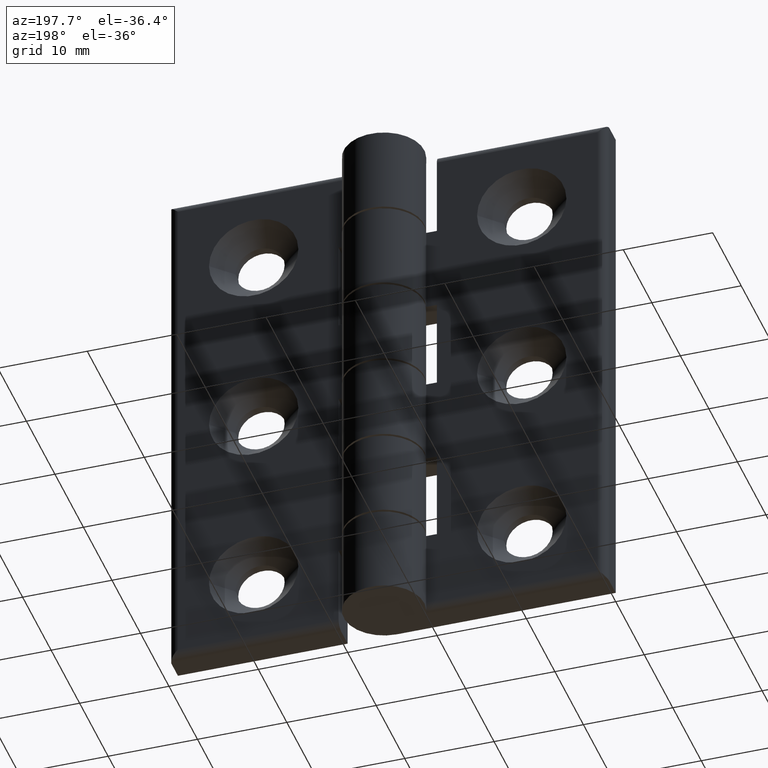
[diagram: clean part render]
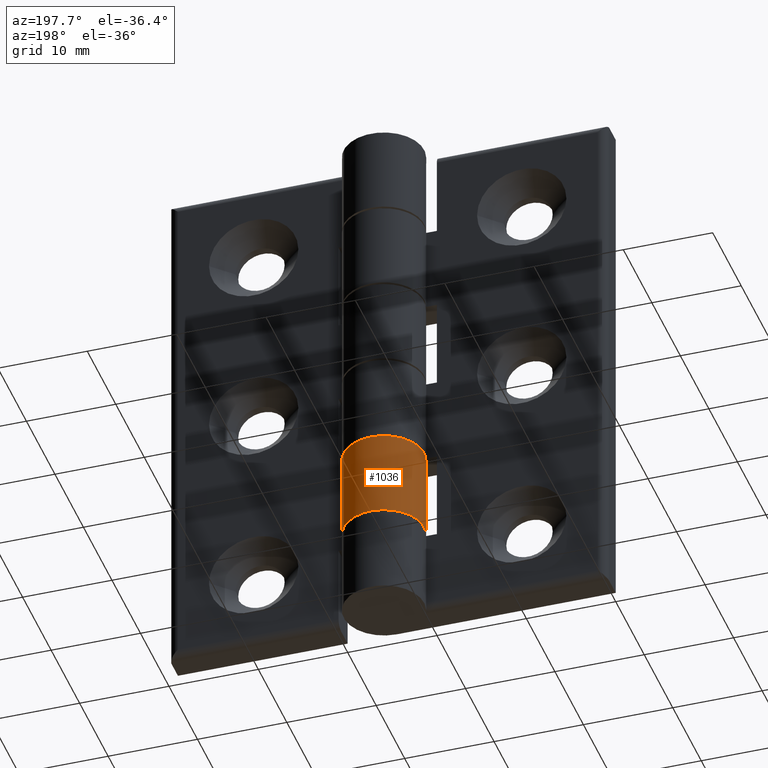
[diagram: same view with one face highlighted and labeled with its STEP entity id]
A machine part, auxiliary view. The second image highlights one B-rep face of the part: STEP entity #1036.
In plain terms, the highlighted cylindrical surface (partial cylindrical patch) has radius 4.5 mm, axis along (0, 0, 1).
Its self-contained STEP definition (entity closure, byte-faithful):
#139=CIRCLE('',#1124,4.5);
#141=CIRCLE('',#1127,4.5);
#202=FACE_OUTER_BOUND('',#291,.T.);
#291=EDGE_LOOP('',(#920,#921,#922,#923));
#397=LINE('',#1741,#475);
#401=LINE('',#1753,#479);
#475=VECTOR('',#1410,9.8);
#479=VECTOR('',#1424,9.8);
#548=VERTEX_POINT('',#1694);
#549=VERTEX_POINT('',#1696);
#552=VERTEX_POINT('',#1703);
#554=VERTEX_POINT('',#1707);
#668=EDGE_CURVE('',#549,#548,#139,.T.);
#674=EDGE_CURVE('',#552,#554,#141,.T.);
#690=EDGE_CURVE('',#554,#549,#397,.T.);
#697=EDGE_CURVE('',#552,#548,#401,.T.);
#920=ORIENTED_EDGE('',*,*,#668,.T.);
#921=ORIENTED_EDGE('',*,*,#697,.F.);
#922=ORIENTED_EDGE('',*,*,#674,.T.);
#923=ORIENTED_EDGE('',*,*,#690,.T.);
#983=CYLINDRICAL_SURFACE('',#1142,4.5);
#1036=ADVANCED_FACE('',(#202),#983,.T.);
#1124=AXIS2_PLACEMENT_3D('',#1697,#1368,#1369);
#1127=AXIS2_PLACEMENT_3D('',#1709,#1378,#1379);
#1142=AXIS2_PLACEMENT_3D('',#1752,#1422,#1423);
#1368=DIRECTION('center_axis',(2.22044604925031E-16,0.,-1.));
#1369=DIRECTION('ref_axis',(0.957362632379467,-0.288888888888889,0.));
#1378=DIRECTION('center_axis',(4.44089209850063E-16,0.,1.));
#1379=DIRECTION('ref_axis',(0.957362632379467,-0.288888888888889,0.));
#1410=DIRECTION('',(0.,0.,1.));
#1422=DIRECTION('center_axis',(0.,0.,1.));
#1423=DIRECTION('ref_axis',(0.957362632379467,-0.288888888888889,0.));
#1424=DIRECTION('',(0.,0.,1.));
#1694=CARTESIAN_POINT('',(28.8081318457076,3.2,19.84));
#1696=CARTESIAN_POINT('',(24.5,0.,19.84));
#1697=CARTESIAN_POINT('Origin',(24.5,4.5,19.84));
#1703=CARTESIAN_POINT('',(28.8081318457076,3.2,10.04));
#1707=CARTESIAN_POINT('',(24.5,0.,10.04));
#1709=CARTESIAN_POINT('Origin',(24.5,4.5,10.04));
#1741=CARTESIAN_POINT('',(24.5,0.,0.));
#1752=CARTESIAN_POINT('Origin',(24.5,4.5,0.));
#1753=CARTESIAN_POINT('',(28.8081318457076,3.2,0.));